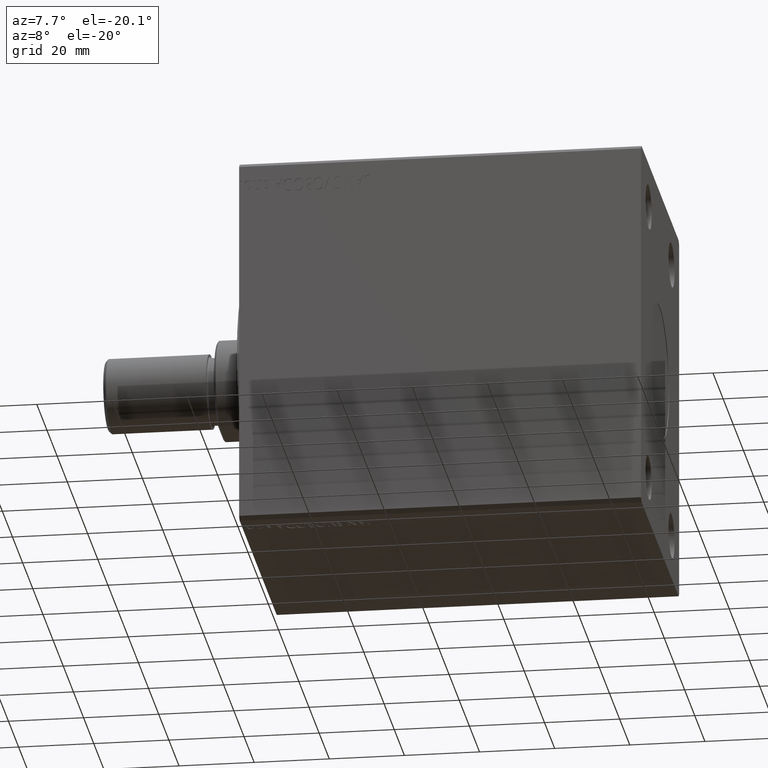
[diagram: clean part render]
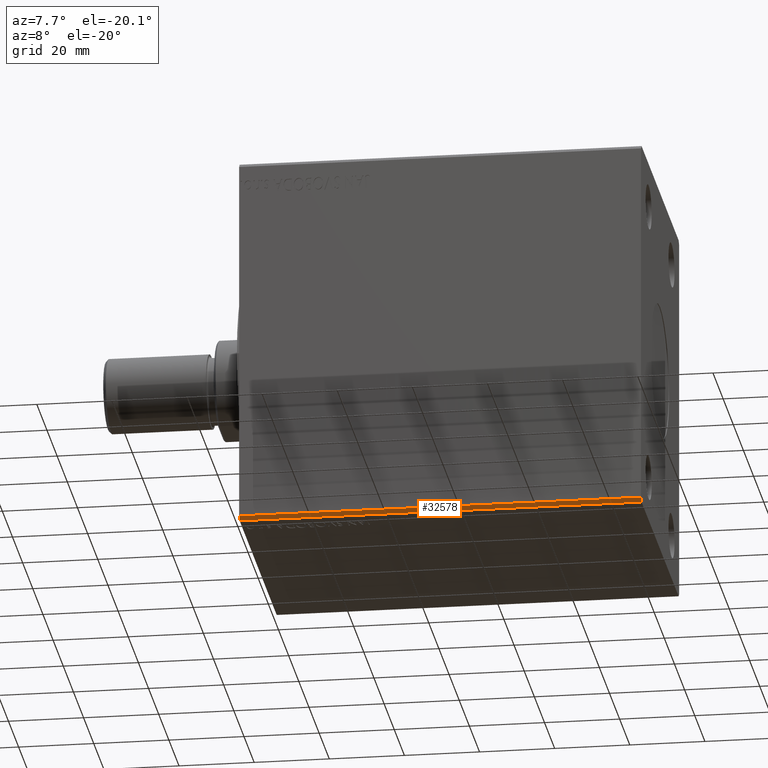
[diagram: same view with one face highlighted and labeled with its STEP entity id]
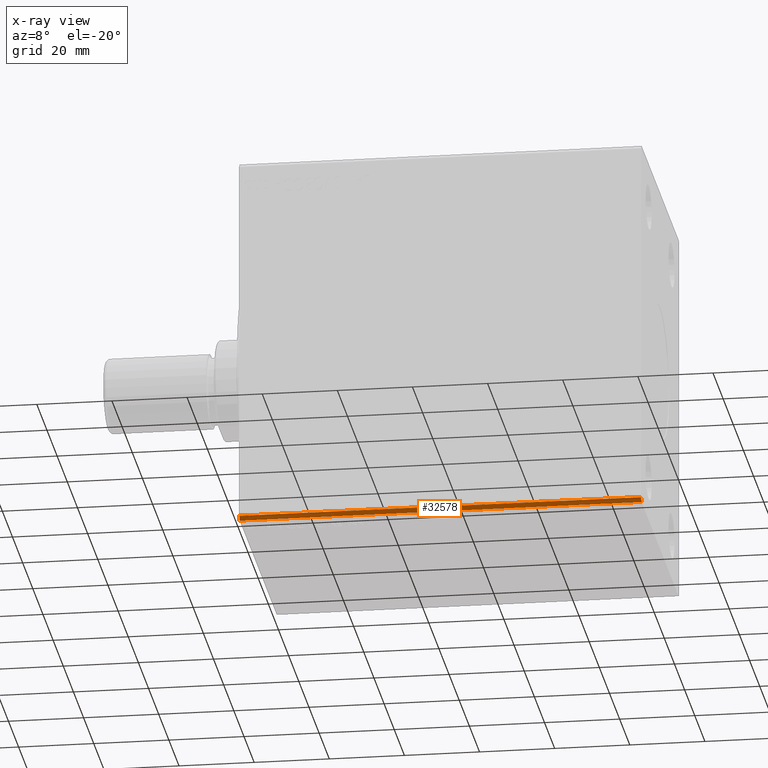
[diagram: x-ray of the same camera — body ghosted, the highlighted face saturated]
A machine part, auxiliary view. The second image highlights one B-rep face of the part: STEP entity #32578.
The next image is the same camera in x-ray: the body ghosted, the highlighted face saturated — about 0% of this face is hidden behind the body in this view.
In plain terms, the highlighted planar face has unit normal (0, 0.7071, 0.7071).
Its self-contained STEP definition (entity closure, byte-faithful):
#921 = DIRECTION ( 'NONE',  ( 0.000000000000000000, 0.7071067811865500152, -0.7071067811865451302 ) ) ;
#1442 = LINE ( 'NONE', #5052, #12125 ) ;
#1454 = VECTOR ( 'NONE', #5375, 1000.000000000000000 ) ;
#1994 = LINE ( 'NONE', #22239, #1454 ) ;
#2593 = AXIS2_PLACEMENT_3D ( 'NONE', #11582, #4172, #25300 ) ;
#3164 = EDGE_CURVE ( 'NONE', #25443, #16617, #29787, .T. ) ;
#4172 = DIRECTION ( 'NONE',  ( -0.000000000000000000, 0.7071067811865451302, 0.7071067811865499042 ) ) ;
#5052 = CARTESIAN_POINT ( 'NONE',  ( 0.000000000000000000, -37.50000000000001421, -49.00000000000000000 ) ) ;
#5375 = DIRECTION ( 'NONE',  ( -1.000000000000000000, -0.000000000000000000, -0.000000000000000000 ) ) ;
#7635 = CARTESIAN_POINT ( 'NONE',  ( 0.000000000000000000, -36.50000000000000711, -50.00000000000000000 ) ) ;
#8355 = VECTOR ( 'NONE', #921, 1000.000000000000114 ) ;
#11582 = CARTESIAN_POINT ( 'NONE',  ( 107.0000000000000000, -37.50000000000001421, -49.00000000000000000 ) ) ;
#12125 = VECTOR ( 'NONE', #29107, 1000.000000000000114 ) ;
#16378 = VERTEX_POINT ( 'NONE', #32183 ) ;
#16617 = VERTEX_POINT ( 'NONE', #7635 ) ;
#19135 = EDGE_CURVE ( 'NONE', #16378, #25443, #44181, .T. ) ;
#20188 = ORIENTED_EDGE ( 'NONE', *, *, #39725, .T. ) ;
#20677 = ORIENTED_EDGE ( 'NONE', *, *, #30448, .T. ) ;
#22239 = CARTESIAN_POINT ( 'NONE',  ( 107.0000000000000000, -37.50000000000001421, -49.00000000000000000 ) ) ;
#25028 = CARTESIAN_POINT ( 'NONE',  ( 0.000000000000000000, -37.50000000000001421, -49.00000000000000000 ) ) ;
#25300 = DIRECTION ( 'NONE',  ( 0.000000000000000000, -0.7071067811865499042, 0.7071067811865451302 ) ) ;
#25443 = VERTEX_POINT ( 'NONE', #25721 ) ;
#25721 = CARTESIAN_POINT ( 'NONE',  ( 107.0000000000000000, -36.50000000000000711, -50.00000000000000000 ) ) ;
#29107 = DIRECTION ( 'NONE',  ( 0.000000000000000000, 0.7071067811865500152, -0.7071067811865451302 ) ) ;
#29787 = LINE ( 'NONE', #30670, #30994 ) ;
#30448 = EDGE_CURVE ( 'NONE', #16378, #40038, #1994, .T. ) ;
#30670 = CARTESIAN_POINT ( 'NONE',  ( 107.0000000000000000, -36.50000000000000711, -50.00000000000000000 ) ) ;
#30994 = VECTOR ( 'NONE', #44383, 1000.000000000000000 ) ;
#32028 = PLANE ( 'NONE',  #2593 ) ;
#32183 = CARTESIAN_POINT ( 'NONE',  ( 107.0000000000000000, -37.50000000000001421, -49.00000000000000000 ) ) ;
#32340 = EDGE_LOOP ( 'NONE', ( #20188, #44375, #33991, #20677 ) ) ;
#32578 = ADVANCED_FACE ( 'NONE', ( #34736 ), #32028, .F. ) ;
#33991 = ORIENTED_EDGE ( 'NONE', *, *, #19135, .F. ) ;
#34736 = FACE_OUTER_BOUND ( 'NONE', #32340, .T. ) ;
#39725 = EDGE_CURVE ( 'NONE', #40038, #16617, #1442, .T. ) ;
#40038 = VERTEX_POINT ( 'NONE', #25028 ) ;
#40805 = CARTESIAN_POINT ( 'NONE',  ( 107.0000000000000000, -37.50000000000001421, -49.00000000000000000 ) ) ;
#44181 = LINE ( 'NONE', #40805, #8355 ) ;
#44375 = ORIENTED_EDGE ( 'NONE', *, *, #3164, .F. ) ;
#44383 = DIRECTION ( 'NONE',  ( -1.000000000000000000, -0.000000000000000000, -0.000000000000000000 ) ) ;